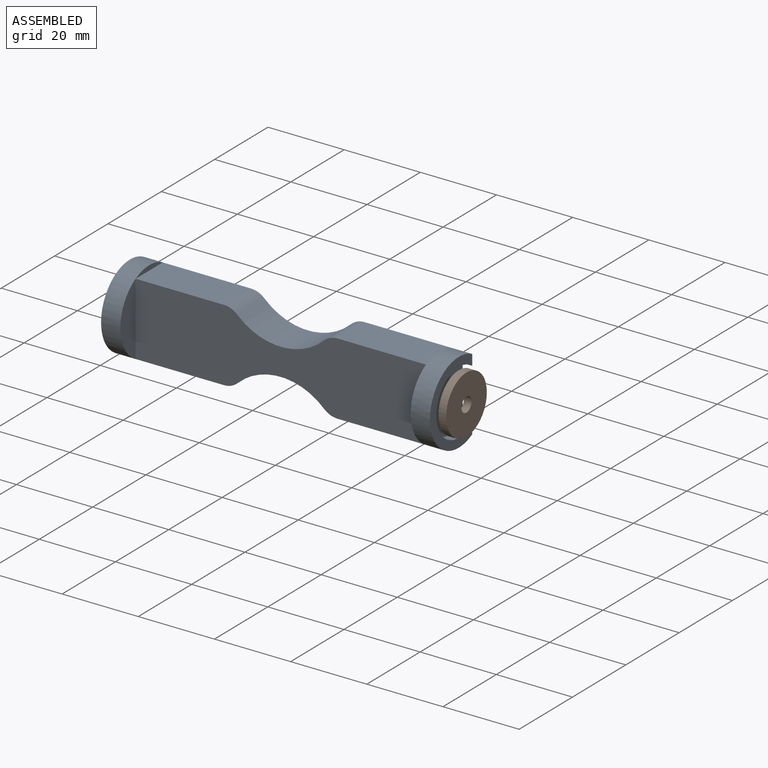
[diagram: assembled view]
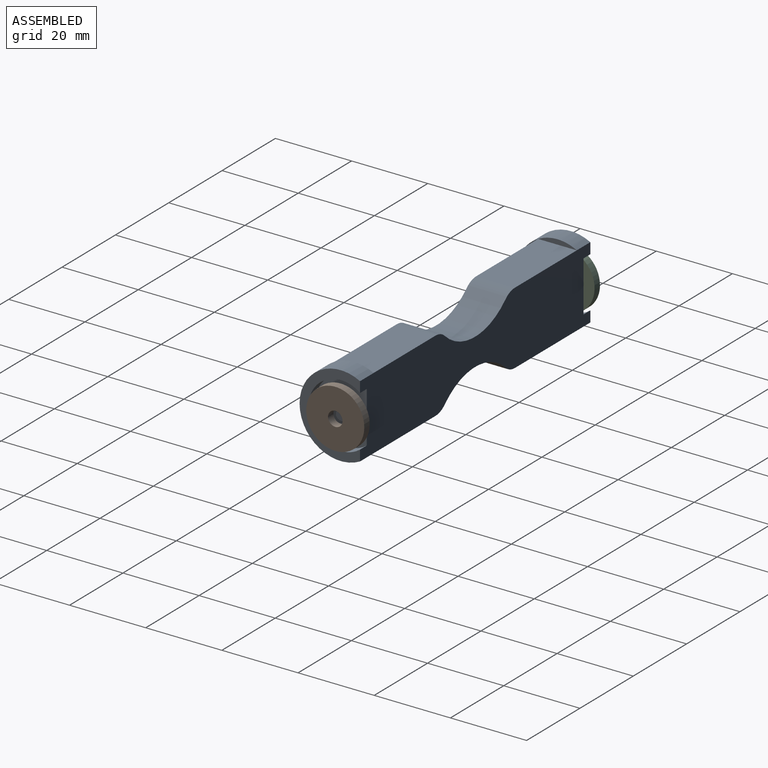
[diagram: assembled view, second angle]
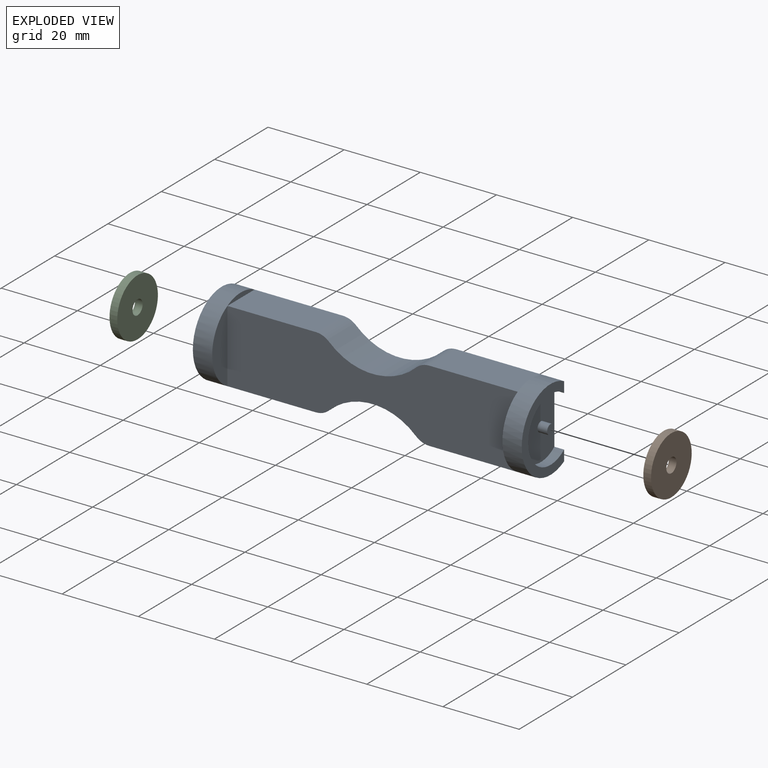
[diagram: exploded view]
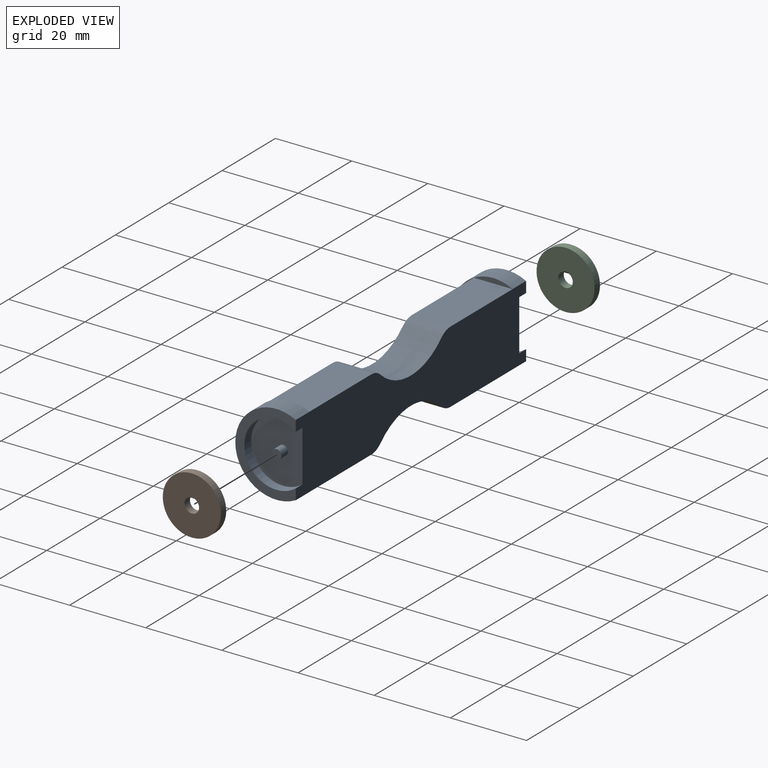
[diagram: exploded view, second angle]
ASSEMBLY  parts=3 mates=2
PART A: 28 faces, bbox 86.4x15.9x21.6 mm
  f0: cylinder r=16.51mm len=22.78mm, axis (0,1,0), area 255.4mm2, adj f6,f7,f24,f27
  f1: plane 23.21x10.16mm, normal (0,0,1), area 235.8mm2, adj f6,f7,f15,f24
  f2: plane 23.21x10.16mm, normal (0,0,-1), area 235.8mm2, adj f6,f7,f15,f25
  f3: cylinder r=16.51mm len=22.78mm, axis (0,1,0), area 255.4mm2, adj f6,f7,f25,f26
  f4: plane 23.21x10.16mm, normal (0,0,-1), area 235.8mm2, adj f6,f7,f12,f26
  f5: plane 23.21x10.16mm, normal (0,0,1), area 235.8mm2, adj f6,f7,f8,f27
  f6: plane 76.2x19.05mm, normal (0,-1,0), area 1238.8mm2, adj f0,f1,f2,f3,f4,f5,f9,f15
  f7: plane 86.36x19.05mm, normal (0,1,0), area 1364.4mm2, adj f0,f1,f2,f3,f4,f5,f10,f11
  f8: plane 10.16x1.27mm, normal (-1,0,0), area 8.7mm2, adj f5,f10
  f9: plane 19.05x5.72mm, normal (-1,0,0), area 77.6mm2, adj f6,f10
  f10: cylinder r=10.79mm len=21.59mm, axis (-1,0,0), area 226mm2, adj f7,f8,f9,f11,f12
  f11: plane 21.59x15.88mm, normal (1,0,0), area 97.1mm2, adj f7,f10,f13
  f12: plane 10.16x1.27mm, normal (-1,0,0), area 8.7mm2, adj f4,f10
  f13: cylinder r=8.42mm len=16.84mm, axis (1,0,0), area 94.9mm2, adj f7,f11,f14
  f14: plane 16.84x13.5mm, normal (1,0,0), area 186.4mm2, adj f7,f13,f20
  f15: plane 21.59x15.88mm, normal (1,0,0), area 95mm2, adj f1,f2,f6,f16
  f16: cylinder r=10.8mm len=21.59mm, axis (1,0,0), area 226mm2, adj f7,f15,f17
  f17: plane 21.59x15.88mm, normal (-1,0,0), area 98.7mm2, adj f7,f16,f18
  f18: cylinder r=8.38mm len=16.76mm, axis (-1,0,0), area 94.6mm2, adj f7,f17,f19
  f19: plane 16.76x13.46mm, normal (-1,0,0), area 184.8mm2, adj f7,f18,f22
  f20: cylinder r=1.27mm len=2.54mm, axis (-1,0,0), area 20.3mm2, adj f14,f21
  f21: plane 2.54x2.54mm, normal (1,0,0), area 5.1mm2, adj f20
  f22: cylinder r=1.27mm len=2.54mm, axis (1,0,0), area 20.3mm2, adj f19,f23
  f23: plane 2.54x2.54mm, normal (-1,0,0), area 5.1mm2, adj f22
  f24: cylinder r=5.08mm len=10.16mm, axis (0,1,0), area 39.3mm2, adj f0,f1,f6,f7
  f25: cylinder r=5.08mm len=10.16mm, axis (0,1,0), area 39.3mm2, adj f2,f3,f6,f7
  f26: cylinder r=5.08mm len=10.16mm, axis (0,1,0), area 39.3mm2, adj f3,f4,f6,f7
  f27: cylinder r=5.08mm len=10.16mm, axis (0,1,0), area 39.3mm2, adj f0,f5,f6,f7
PART B: 4 faces, bbox 15.2x2x15.2 mm
  f0: cylinder r=1.91mm len=3.81mm, axis (0,1,0), area 24.3mm2, adj f2,f3
  f1: cylinder r=7.62mm len=15.24mm, axis (0,1,0), area 97.3mm2, adj f2,f3
  f2: plane 15.24x15.24mm, normal (0,-1,0), area 171mm2, adj f0,f1
  f3: plane 15.24x15.24mm, normal (0,1,0), area 171mm2, adj f0,f1
PART C: same geometry as B
PLACE A rot(axis=(-0.57,0.5,0.66),0deg) t=(-25.37,12.51,5.92)mm
PLACE B rot(axis=(0,0,-1),90deg) t=(10.96,7.43,34.67)mm
PLACE C rot(axis=(0,0,1),90deg) t=(-77.43,7.43,34.67)mm
MATE cylindrical C.f0 <-> A.f16  axis (-1,0,0) through (-77.43,7.43,5.92)mm
MATE cylindrical A.f10 <-> B.f0  axis (1,0,0) through (8.93,7.43,5.92)mm
